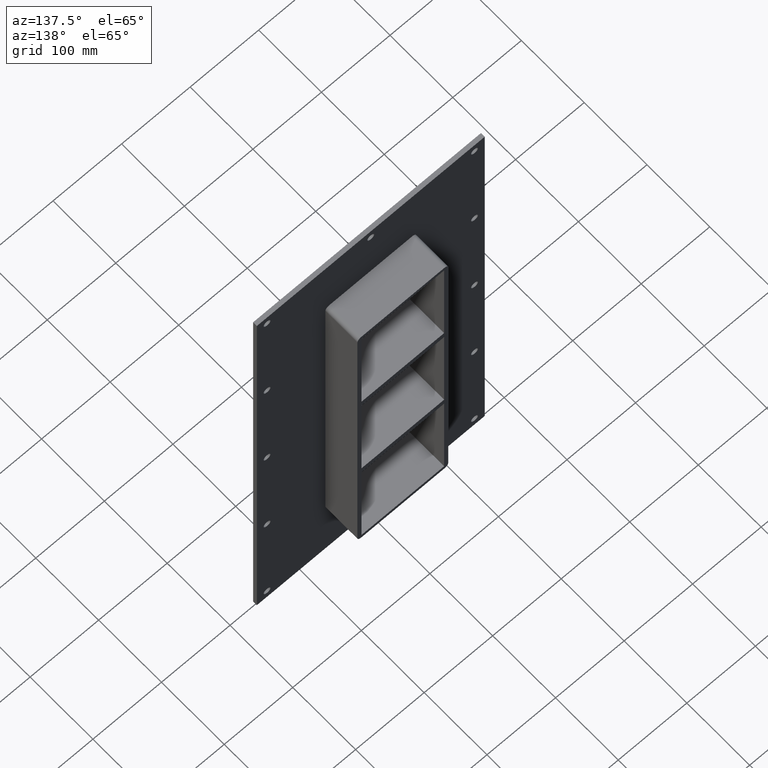
[diagram: clean part render]
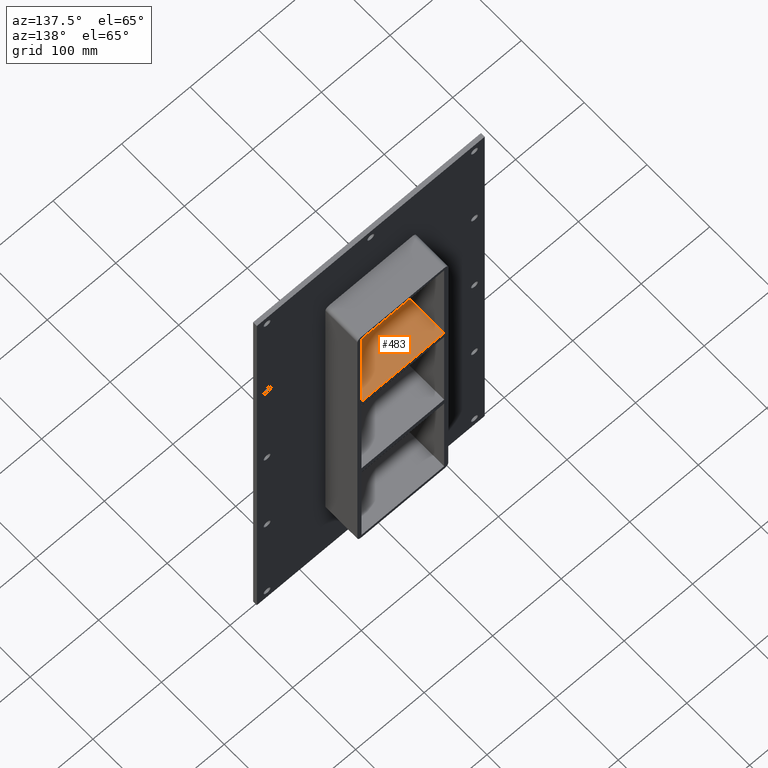
[diagram: same view with one face highlighted and labeled with its STEP entity id]
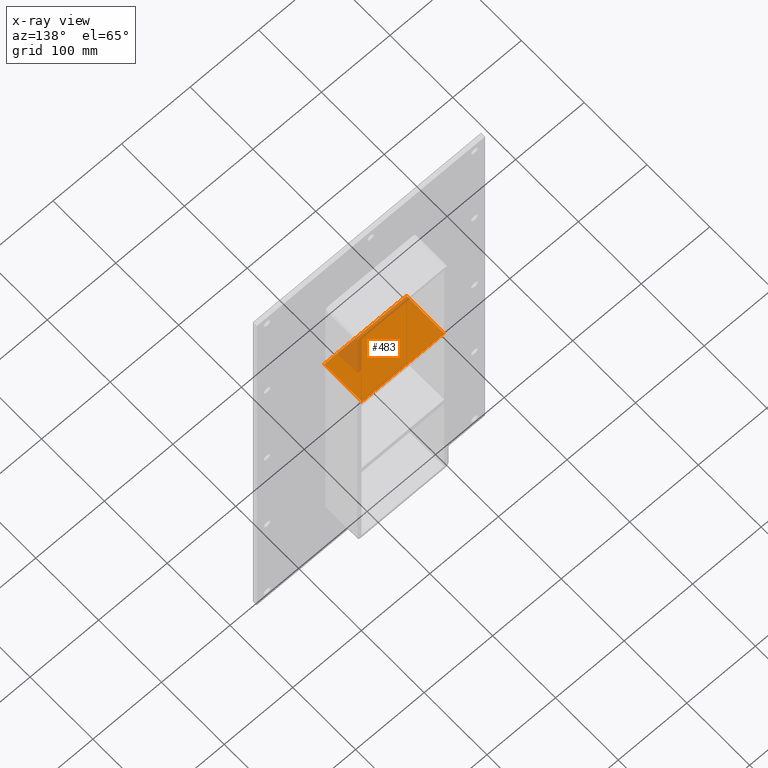
[diagram: x-ray of the same camera — body ghosted, the highlighted face saturated]
A machine part, auxiliary view. The second image highlights one B-rep face of the part: STEP entity #483.
The next image is the same camera in x-ray: the body ghosted, the highlighted face saturated — about 14% of this face is hidden behind the body in this view.
In plain terms, the highlighted planar face has unit normal (0, 0, 1).
Its self-contained STEP definition (entity closure, byte-faithful):
#444=CARTESIAN_POINT('',(-60.249999999999687,-3.0,89.750000000000085));
#445=DIRECTION('',(0.0,0.0,1.0));
#446=DIRECTION('',(1.0,0.0,0.0));
#447=AXIS2_PLACEMENT_3D('',#444,#445,#446);
#448=PLANE('',#447);
#449=CARTESIAN_POINT('',(-60.249999999999687,-3.0,89.750000000000085));
#450=VERTEX_POINT('',#449);
#451=CARTESIAN_POINT('',(60.249999999999901,-3.0,89.750000000000085));
#452=VERTEX_POINT('',#451);
#453=CARTESIAN_POINT('',(-60.249999999999687,-3.0,89.750000000000085));
#454=DIRECTION('',(1.0,0.0,0.0));
#455=VECTOR('',#454,120.49999999999957);
#456=LINE('',#453,#455);
#457=EDGE_CURVE('',#450,#452,#456,.T.);
#458=ORIENTED_EDGE('',*,*,#457,.T.);
#459=CARTESIAN_POINT('',(60.249999999999901,57.0,89.750000000000085));
#460=VERTEX_POINT('',#459);
#461=CARTESIAN_POINT('',(60.249999999999986,57.000000000000007,89.750000000000085));
#462=DIRECTION('',(0.0,-1.0,0.0));
#463=VECTOR('',#462,60.000000000000007);
#464=LINE('',#461,#463);
#465=EDGE_CURVE('',#460,#452,#464,.T.);
#466=ORIENTED_EDGE('',*,*,#465,.F.);
#467=CARTESIAN_POINT('',(-60.249999999999687,57.0,89.750000000000085));
#468=VERTEX_POINT('',#467);
#469=CARTESIAN_POINT('',(-60.249999999999687,57.0,89.750000000000085));
#470=DIRECTION('',(1.0,0.0,0.0));
#471=VECTOR('',#470,120.49999999999957);
#472=LINE('',#469,#471);
#473=EDGE_CURVE('',#468,#460,#472,.T.);
#474=ORIENTED_EDGE('',*,*,#473,.F.);
#475=CARTESIAN_POINT('',(-60.249999999999986,-3.0,89.750000000000071));
#476=DIRECTION('',(0.0,1.0,0.0));
#477=VECTOR('',#476,60.000000000000007);
#478=LINE('',#475,#477);
#479=EDGE_CURVE('',#450,#468,#478,.T.);
#480=ORIENTED_EDGE('',*,*,#479,.F.);
#481=EDGE_LOOP('',(#458,#466,#474,#480));
#482=FACE_OUTER_BOUND('',#481,.T.);
#483=ADVANCED_FACE('',(#482),#448,.T.);